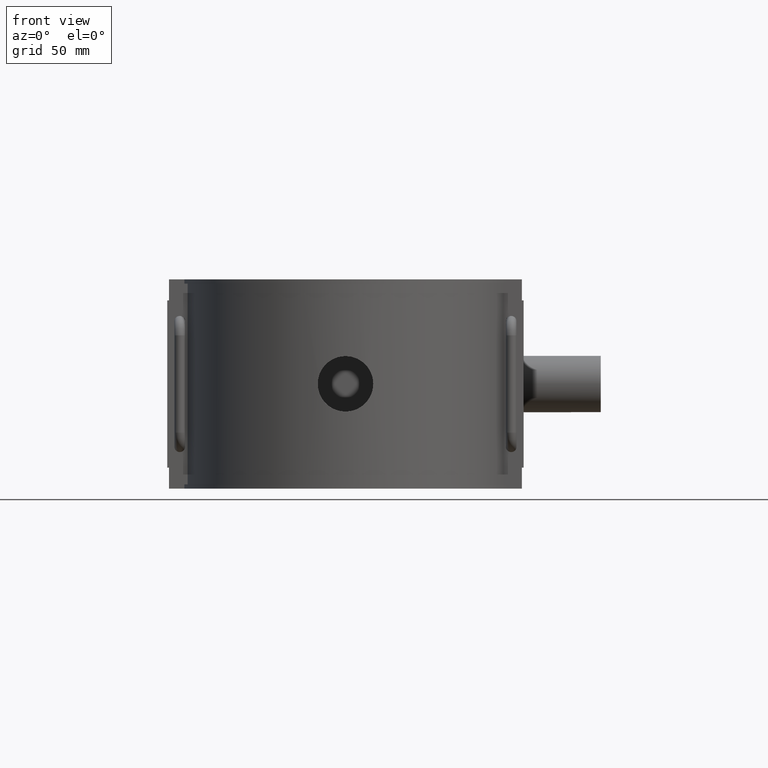
[diagram: clean part render]
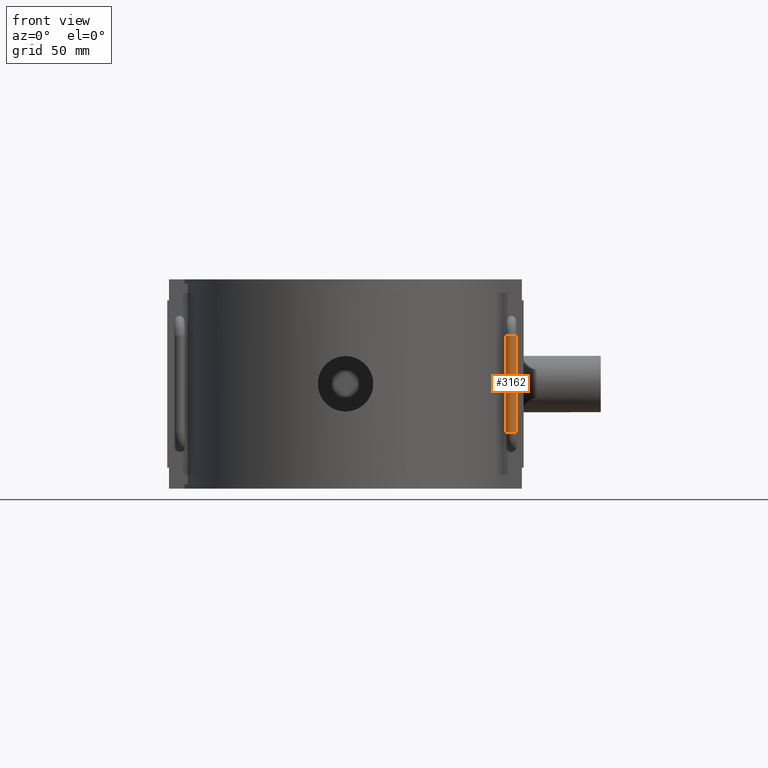
[diagram: same view with one face highlighted and labeled with its STEP entity id]
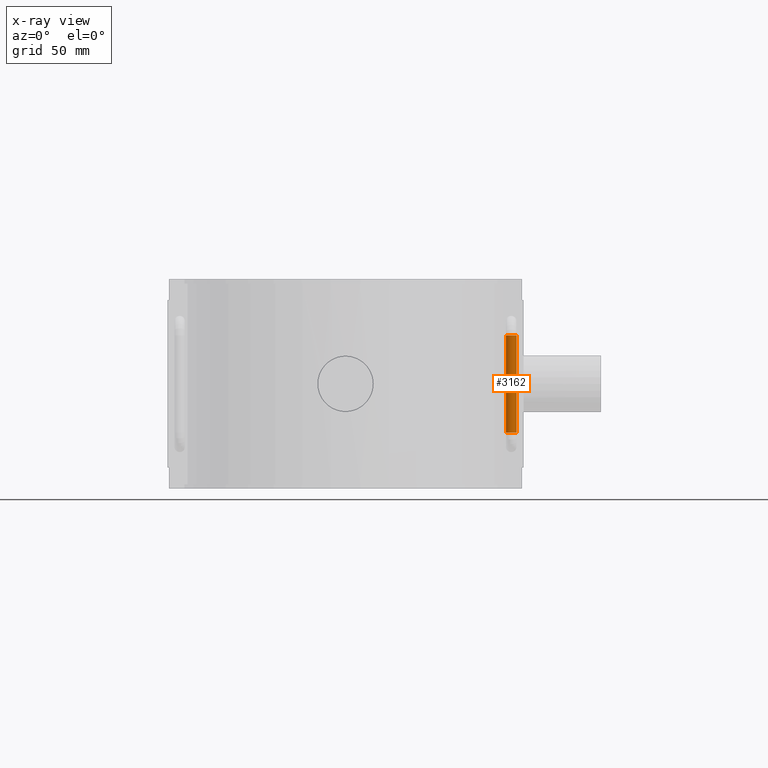
[diagram: x-ray of the same camera — body ghosted, the highlighted face saturated]
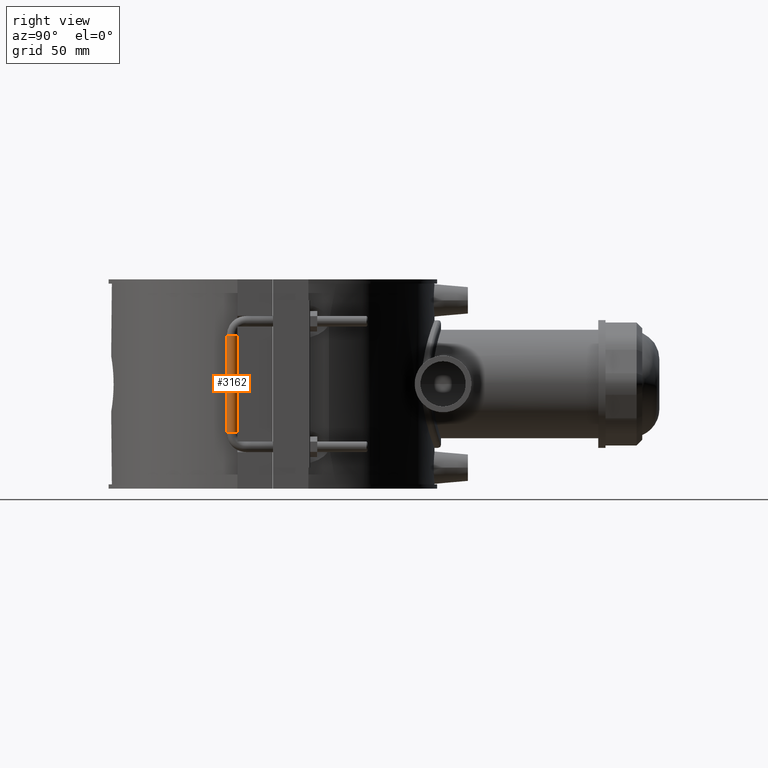
[diagram: same view with one face highlighted and labeled with its STEP entity id]
A machine part, front view. The second image highlights one B-rep face of the part: STEP entity #3162.
The next image is the same camera in x-ray: the body ghosted, the highlighted face saturated — about 0% of this face is hidden behind the body in this view.
A second angle (right view) of the same face is appended — the face is thin or edge-on in the first view.
In plain terms, the highlighted cylindrical surface (bore or boss wall) has radius 3 mm, axis along (0, -0, -1).
Its self-contained STEP definition (entity closure, byte-faithful):
#139=LINE('',#5436,#418);
#418=VECTOR('',#3788,54.7999999999999);
#798=CIRCLE('',#3426,3.);
#803=CIRCLE('',#3432,3.);
#1020=FACE_OUTER_BOUND('',#1248,.T.);
#1248=EDGE_LOOP('',(#2800,#2801,#2802,#2803));
#1458=VERTEX_POINT('',#5422);
#1459=VERTEX_POINT('',#5435);
#1800=EDGE_CURVE('',#1459,#1458,#139,.T.);
#2000=EDGE_CURVE('',#1458,#1458,#798,.T.);
#2011=EDGE_CURVE('',#1459,#1459,#803,.T.);
#2800=ORIENTED_EDGE('',*,*,#2011,.T.);
#2801=ORIENTED_EDGE('',*,*,#1800,.T.);
#2802=ORIENTED_EDGE('',*,*,#2000,.F.);
#2803=ORIENTED_EDGE('',*,*,#1800,.F.);
#3000=CYLINDRICAL_SURFACE('',#3437,3.);
#3162=ADVANCED_FACE('',(#1020),#3000,.T.);
#3426=AXIS2_PLACEMENT_3D('',#6250,#4184,#4185);
#3432=AXIS2_PLACEMENT_3D('',#6335,#4196,#4197);
#3437=AXIS2_PLACEMENT_3D('',#6371,#4210,#4211);
#3788=DIRECTION('',(0.,-3.24152707919754E-16,-1.));
#4184=DIRECTION('center_axis',(0.,-6.12323399573677E-17,-1.));
#4185=DIRECTION('ref_axis',(-1.,0.,0.));
#4196=DIRECTION('center_axis',(0.,-6.12323399573677E-17,-1.));
#4197=DIRECTION('ref_axis',(-1.,0.,0.));
#4210=DIRECTION('center_axis',(0.,-3.24152707919754E-16,-1.));
#4211=DIRECTION('ref_axis',(-1.,0.,0.));
#5422=CARTESIAN_POINT('',(93.5,-20.,-27.4));
#5435=CARTESIAN_POINT('',(93.5,-20.,27.3999999999999));
#5436=CARTESIAN_POINT('',(93.5,-20.,27.3999999999999));
#6250=CARTESIAN_POINT('Origin',(93.5,-22.9999999999995,-27.4));
#6335=CARTESIAN_POINT('Origin',(93.5,-22.9999999999994,27.3999999999999));
#6371=CARTESIAN_POINT('Origin',(93.5,-22.9999999999994,27.3999999999999));